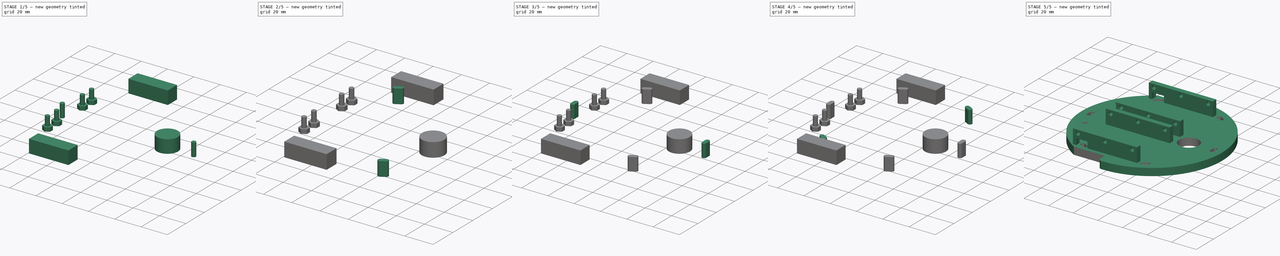
[diagram: build sequence overview — one tinted view per stage of 5, left to right]
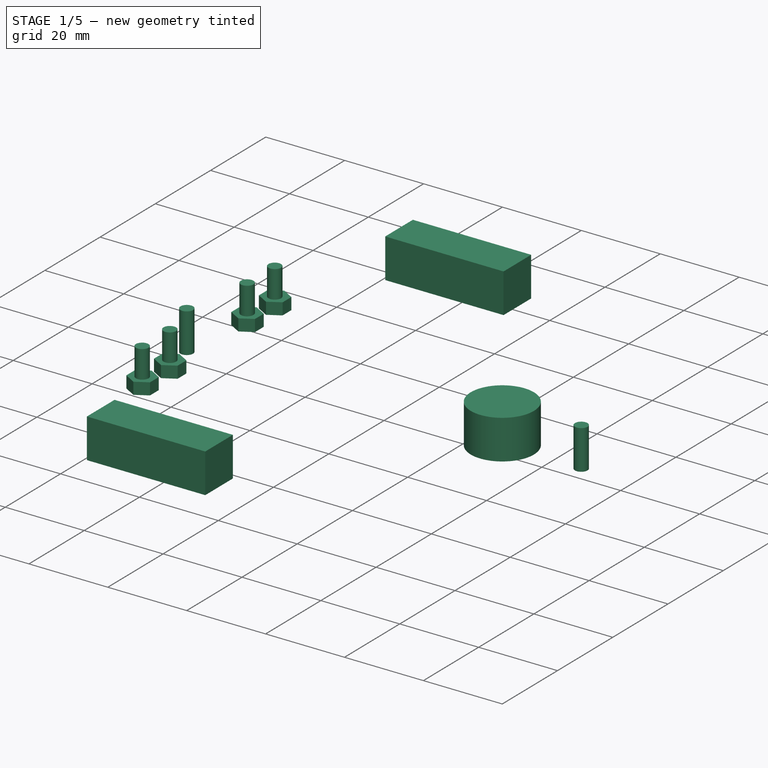
[diagram: stage 1 of 5 — iso view after this stage's code; geometry added in this stage tinted green]
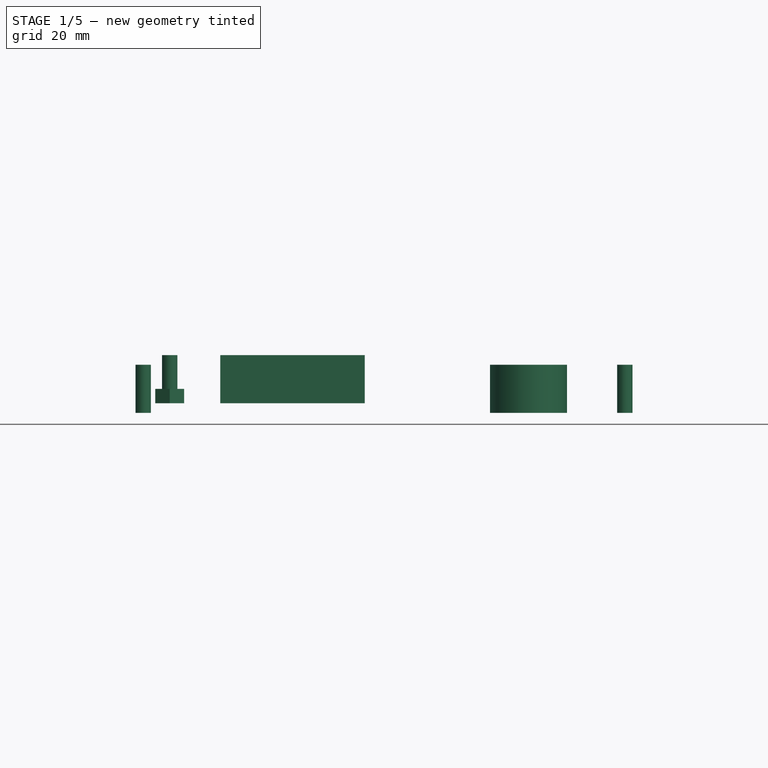
[diagram: stage 1 of 5 — front view after this stage's code; geometry added in this stage tinted green]
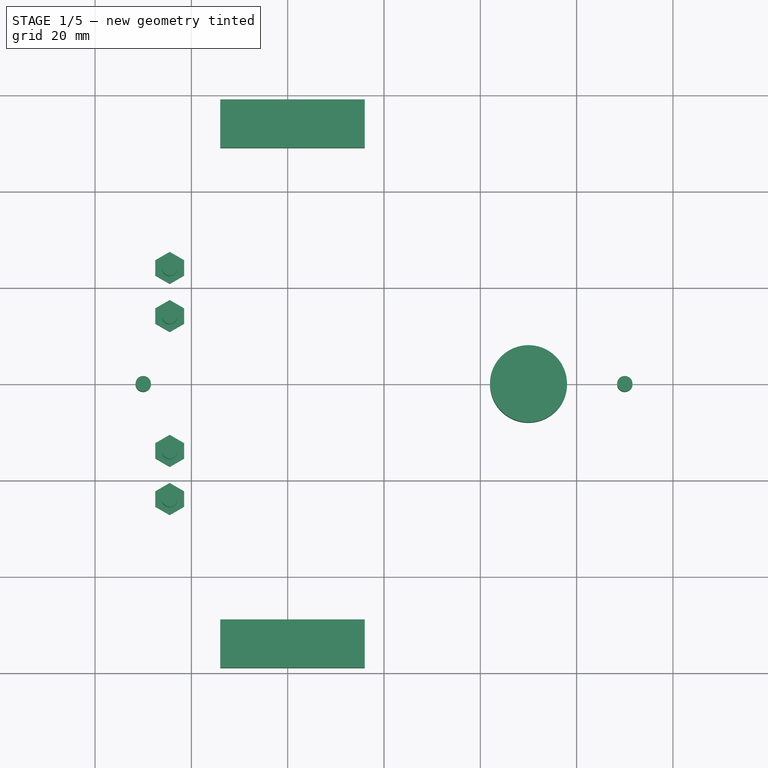
[diagram: stage 1 of 5 — top view after this stage's code; geometry added in this stage tinted green]
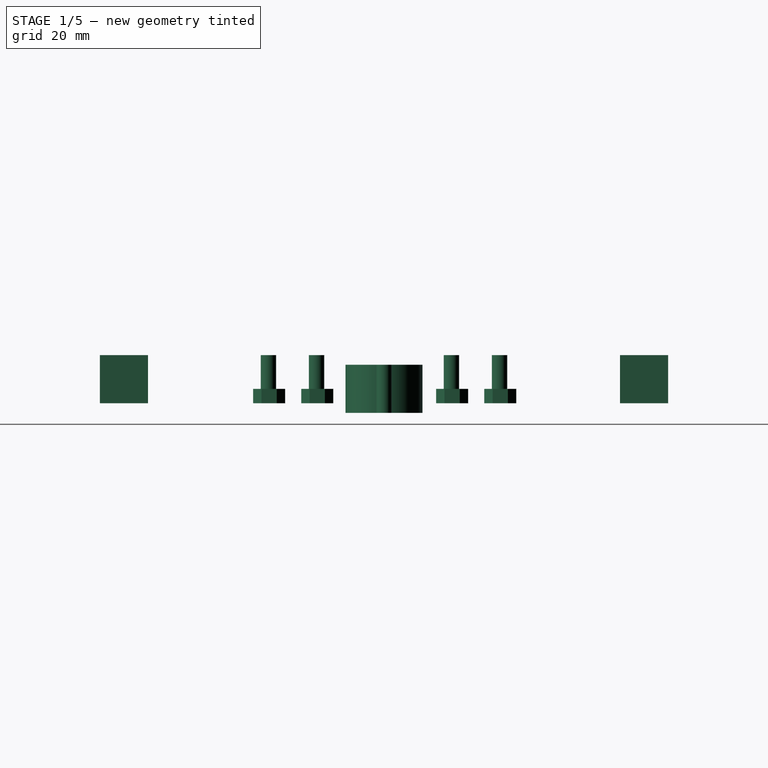
[diagram: stage 1 of 5 — right view after this stage's code; geometry added in this stage tinted green]
FCSTD DOCUMENT  (FreeCAD 0.15R4671 (Git))
Label: bottom_plate
License: All rights reserved
LicenseURL: http://en.wikipedia.org/wiki/All_rights_reserved
objects: Part::Cylinder×56, Part::MultiFuse×39, Part::Mirroring×7, Part::Cut×5, Sketcher::SketchObject×4, Part::Extrusion×4, Part::Box×3, Part::Fillet×1
note: 119 computed .brp shape members not serialized (recipe doc carries the construction recipe); baked Part::Feature solids carry a one-line shape summary decoded from their .brp

FEATURE [Part::Cylinder] Cylinder047
  Angle = 360
  Height = 10
  Placement = pos=(50,0,-2) rot=(0,0,1;0rad)
  Radius = 1.6
FEATURE [Part::Cylinder] Cylinder048
  Angle = 360
  Height = 10
  Placement = pos=(-50,0,-2) rot=(0,0,1;0rad)
  Radius = 1.6
FEATURE [Part::Cylinder] Cylinder053
  Angle = 360
  Height = 10
  Placement = pos=(-44.5,14,0) rot=(0,0,1;0rad)
  Radius = 1.6
FEATURE [Part::Cylinder] Cylinder054
  Angle = 360
  Height = 10
  Placement = pos=(-44.5,24,0) rot=(0,0,1;0rad)
  Radius = 1.6
FEATURE [Part::MultiFuse] Fusion031
  Shapes = -> [Cylinder053,Cylinder054]
FEATURE [Part::Mirroring] Part__Mirroring001  label="Fusion031 (Mirror #2)"
  Base = (0,0,0)
  Normal = (0,1,0)
  Source = -> Fusion031
FEATURE [Part::MultiFuse] Fusion032
  Shapes = -> [Fusion031,Part__Mirroring001]
FEATURE [Sketcher::SketchObject] Sketch002  label="M004"
  sketch-geometry (4):
    g0: LineSegment StartX=0 StartY=3.4641 StartZ=0 EndX=3 EndY=1.73205 EndZ=0
    g1: LineSegment StartX=3 StartY=1.73205 StartZ=0 EndX=3 EndY=-1.44338 EndZ=0
    g2: LineSegment StartX=3 StartY=-1.44338 StartZ=0 EndX=0 EndY=-3.17543 EndZ=0
    g3: LineSegment StartX=0 StartY=3.4641 StartZ=0 EndX=0 EndY=-3.17543 EndZ=0
  constraints (12):
    c: DistanceX(g0) = 3
    c: Coincident(g1,g0)
    c: Vertical(g1)
    c: Coincident(g2,g1)
    c: DistanceX(g0) = 0
    c: DistanceX(g2) = 0
    c: Angle(g0,g1) = 2.0944
    c: Coincident(g3,g0)
    c: Coincident(g3,g2)
    c: DistanceY(g0) = 3.4641
    c: DistanceY(g2) = -3.17543
    c: Angle(g1,g2) = 2.0944
FEATURE [Part::Extrusion] Extrude001
  Base = -> Sketch002
  Dir = (0,0,3)
  Solid = true
FEATURE [Part::Mirroring] Part__Mirroring003  label="Extrude (Mirror #1)001"
  Base = (0,0,0)
  Normal = (1,0,0)
  Source = -> Extrude001
FEATURE [Part::MultiFuse] Fusion034
  Placement = pos=(-44.5,14,0) rot=(0,0,1;0rad)
  Shapes = -> [Part__Mirroring003,Extrude001]
FEATURE [Sketcher::SketchObject] Sketch003  label="M005"
  sketch-geometry (4):
    g0: LineSegment StartX=0 StartY=3.4641 StartZ=0 EndX=3 EndY=1.73205 EndZ=0
    g1: LineSegment StartX=3 StartY=1.73205 StartZ=0 EndX=3 EndY=-1.44338 EndZ=0
    g2: LineSegment StartX=3 StartY=-1.44338 StartZ=0 EndX=0 EndY=-3.17543 EndZ=0
    g3: LineSegment StartX=0 StartY=3.4641 StartZ=0 EndX=0 EndY=-3.17543 EndZ=0
  constraints (12):
    c: DistanceX(g0) = 3
    c: Coincident(g1,g0)
    c: Vertical(g1)
    c: Coincident(g2,g1)
    c: DistanceX(g0) = 0
    c: DistanceX(g2) = 0
    c: Angle(g0,g1) = 2.0944
    c: Coincident(g3,g0)
    c: Coincident(g3,g2)
    c: DistanceY(g0) = 3.4641
    c: DistanceY(g2) = -3.17543
    c: Angle(g1,g2) = 2.0944
FEATURE [Part::Extrusion] Extrude
  Base = -> Sketch003
  Dir = (0,0,3)
  Solid = true
FEATURE [Part::Mirroring] Part__Mirroring004  label="Extrude (Mirror #1)002"
  Base = (0,0,0)
  Normal = (1,0,0)
  Source = -> Extrude
FEATURE [Part::MultiFuse] Fusion035
  Placement = pos=(-44.5,24,0) rot=(0,0,1;0rad)
  Shapes = -> [Part__Mirroring004,Extrude]
FEATURE [Sketcher::SketchObject] Sketch004  label="M006"
  sketch-geometry (4):
    g0: LineSegment StartX=0 StartY=3.4641 StartZ=0 EndX=3 EndY=1.73205 EndZ=0
    g1: LineSegment StartX=3 StartY=1.73205 StartZ=0 EndX=3 EndY=-1.44338 EndZ=0
    g2: LineSegment StartX=3 StartY=-1.44338 StartZ=0 EndX=0 EndY=-3.17543 EndZ=0
    g3: LineSegment StartX=0 StartY=3.4641 StartZ=0 EndX=0 EndY=-3.17543 EndZ=0
  constraints (12):
    c: DistanceX(g0) = 3
    c: Coincident(g1,g0)
    c: Vertical(g1)
    c: Coincident(g2,g1)
    c: DistanceX(g0) = 0
    c: DistanceX(g2) = 0
    c: Angle(g0,g1) = 2.0944
    c: Coincident(g3,g0)
    c: Coincident(g3,g2)
    c: DistanceY(g0) = 3.4641
    c: DistanceY(g2) = -3.17543
    c: Angle(g1,g2) = 2.0944
FEATURE [Part::Extrusion] Extrude002
  Base = -> Sketch004
  Dir = (0,0,3)
  Solid = true
FEATURE [Part::Mirroring] Part__Mirroring005  label="Extrude (Mirror #1)003"
  Base = (0,0,0)
  Normal = (1,0,0)
  Source = -> Extrude002
FEATURE [Part::MultiFuse] Fusion036
  Placement = pos=(-44.5,-14,0) rot=(0,0,1;0rad)
  Shapes = -> [Part__Mirroring005,Extrude002]
FEATURE [Sketcher::SketchObject] Sketch005  label="M007"
  sketch-geometry (4):
    g0: LineSegment StartX=0 StartY=3.4641 StartZ=0 EndX=3 EndY=1.73205 EndZ=0
    g1: LineSegment StartX=3 StartY=1.73205 StartZ=0 EndX=3 EndY=-1.44338 EndZ=0
    g2: LineSegment StartX=3 StartY=-1.44338 StartZ=0 EndX=0 EndY=-3.17543 EndZ=0
    g3: LineSegment StartX=0 StartY=3.4641 StartZ=0 EndX=0 EndY=-3.17543 EndZ=0
  constraints (12):
    c: DistanceX(g0) = 3
    c: Coincident(g1,g0)
    c: Vertical(g1)
    c: Coincident(g2,g1)
    c: DistanceX(g0) = 0
    c: DistanceX(g2) = 0
    c: Angle(g0,g1) = 2.0944
    c: Coincident(g3,g0)
    c: Coincident(g3,g2)
    c: DistanceY(g0) = 3.4641
    c: DistanceY(g2) = -3.17543
    c: Angle(g1,g2) = 2.0944
FEATURE [Part::Extrusion] Extrude003
  Base = -> Sketch005
  Dir = (0,0,3)
  Solid = true
FEATURE [Part::Mirroring] Part__Mirroring006  label="Extrude (Mirror #1)004"
  Base = (0,0,0)
  Normal = (1,0,0)
  Source = -> Extrude003
FEATURE [Part::MultiFuse] Fusion037
  Placement = pos=(-44.5,-24,0) rot=(0,0,1;0rad)
  Shapes = -> [Part__Mirroring006,Extrude003]
FEATURE [Part::Box] Box002  label="Cube002"
  Height = 10
  Length = 30
  Placement = pos=(-34,49,0) rot=(0,0,1;0rad)
  Width = 10
FEATURE [Part::Mirroring] Part__Mirroring007  label="Cube002 (Mirror #7)"
  Base = (0,0,0)
  Normal = (0,1,0)
  Source = -> Box002
FEATURE [Part::MultiFuse] Fusion039
  Shapes = -> [Part__Mirroring007,Box002]
FEATURE [Part::Cylinder] Cylinder055
  Angle = 360
  Height = 10
  Placement = pos=(30,0,-2) rot=(0,0,1;0rad)
  Radius = 8
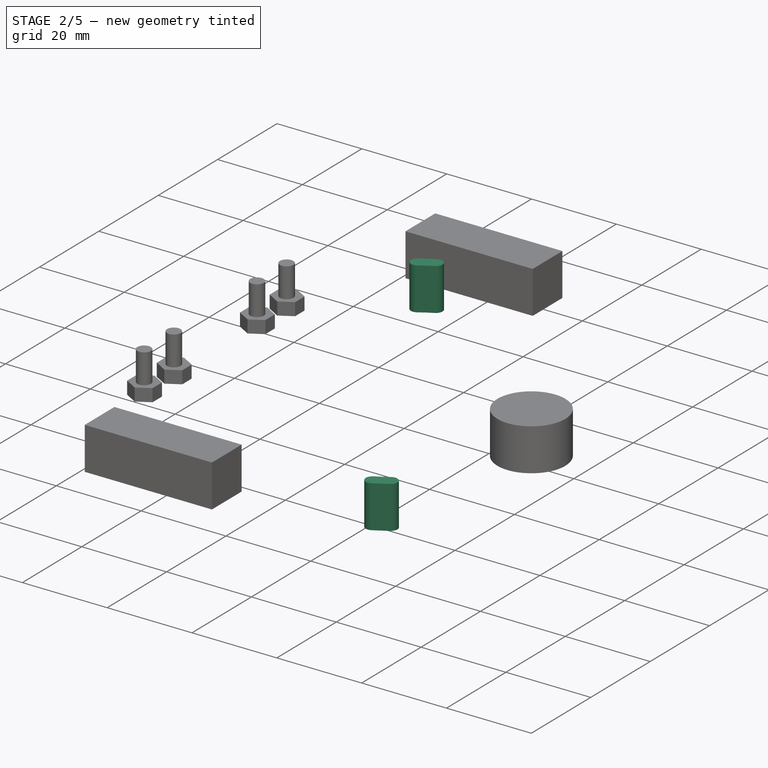
[diagram: stage 2 of 5 — iso view after this stage's code; geometry added in this stage tinted green]
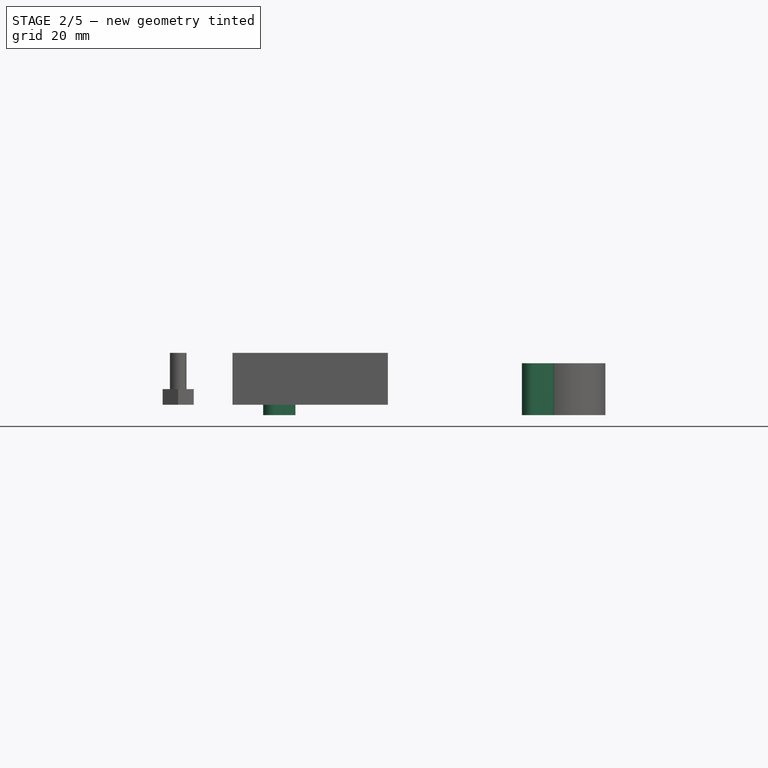
[diagram: stage 2 of 5 — front view after this stage's code; geometry added in this stage tinted green]
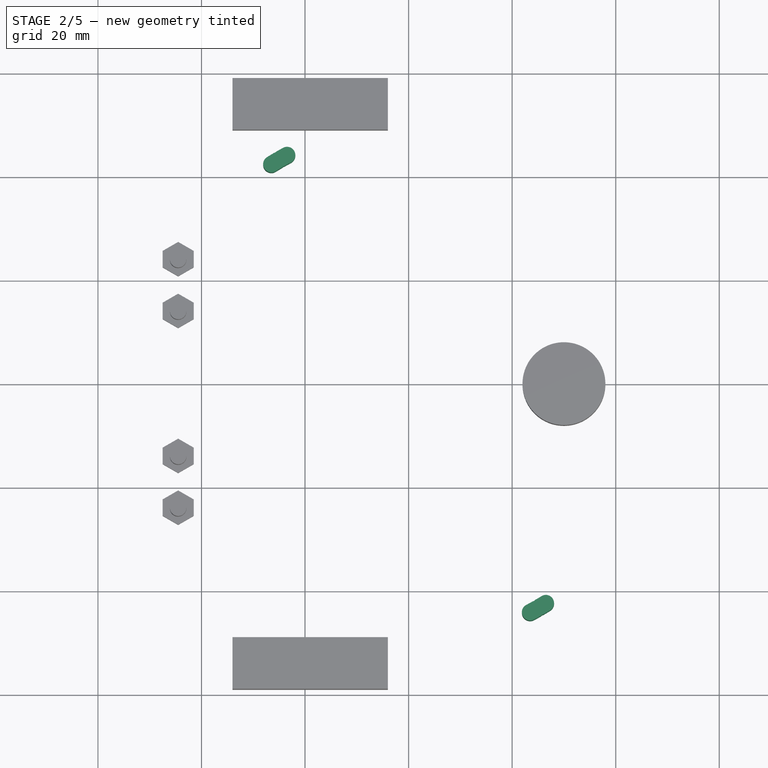
[diagram: stage 2 of 5 — top view after this stage's code; geometry added in this stage tinted green]
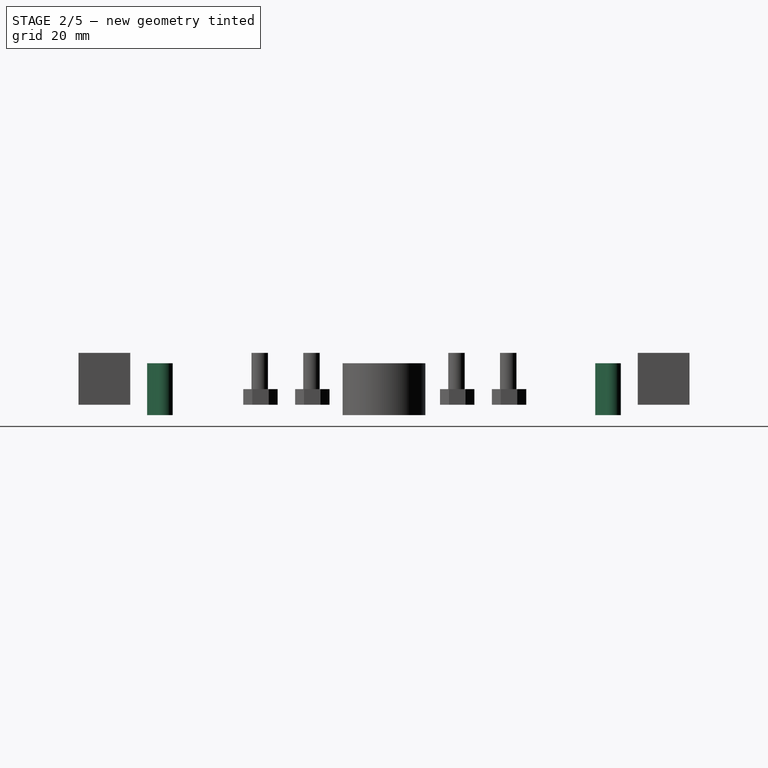
[diagram: stage 2 of 5 — right view after this stage's code; geometry added in this stage tinted green]
FEATURE [Part::Cylinder] Cylinder033
  Angle = 360
  Height = 10
  Placement = pos=(50,0,-2) rot=(0,0,1;0rad)
  Radius = 1.6
FEATURE [Part::Cylinder] Cylinder034
  Angle = 360
  Height = 10
  Placement = pos=(-50,0,-2) rot=(0,0,1;0rad)
  Radius = 1.6
FEATURE [Part::MultiFuse] Fusion018
  Placement = pos=(0,0,0) rot=(0,0,1;0.017453rad)
  Shapes = -> [Cylinder033,Cylinder034]
FEATURE [Part::Cylinder] Cylinder035
  Angle = 360
  Height = 10
  Placement = pos=(50,0,-2) rot=(0,0,1;0rad)
  Radius = 1.6
FEATURE [Part::Cylinder] Cylinder036
  Angle = 360
  Height = 10
  Placement = pos=(-50,0,-2) rot=(0,0,1;0rad)
  Radius = 1.6
FEATURE [Part::MultiFuse] Fusion019
  Placement = pos=(0,0,0) rot=(0,0,1;0.034907rad)
  Shapes = -> [Cylinder035,Cylinder036]
FEATURE [Part::Cylinder] Cylinder037
  Angle = 360
  Height = 10
  Placement = pos=(50,0,-2) rot=(0,0,1;0rad)
  Radius = 1.6
FEATURE [Part::Cylinder] Cylinder038
  Angle = 360
  Height = 10
  Placement = pos=(-50,0,-2) rot=(0,0,1;0rad)
  Radius = 1.6
FEATURE [Part::MultiFuse] Fusion020
  Placement = pos=(0,0,0) rot=(0,0,-1;0.017453rad)
  Shapes = -> [Cylinder037,Cylinder038]
FEATURE [Part::Cylinder] Cylinder039
  Angle = 360
  Height = 10
  Placement = pos=(50,0,-2) rot=(0,0,1;0rad)
  Radius = 1.6
FEATURE [Part::Cylinder] Cylinder040
  Angle = 360
  Height = 10
  Placement = pos=(-50,0,-2) rot=(0,0,1;0rad)
  Radius = 1.6
FEATURE [Part::MultiFuse] Fusion021
  Placement = pos=(0,0,0) rot=(0,0,-1;0.034907rad)
  Shapes = -> [Cylinder039,Cylinder040]
FEATURE [Part::Cylinder] Cylinder041
  Angle = 360
  Height = 10
  Placement = pos=(50,0,-2) rot=(0,0,1;0rad)
  Radius = 1.6
FEATURE [Part::Cylinder] Cylinder042
  Angle = 360
  Height = 10
  Placement = pos=(-50,0,-2) rot=(0,0,1;0rad)
  Radius = 1.6
FEATURE [Part::MultiFuse] Fusion022
  Placement = pos=(0,0,0) rot=(0,0,-1;0.008727rad)
  Shapes = -> [Cylinder041,Cylinder042]
FEATURE [Part::Cylinder] Cylinder043
  Angle = 360
  Height = 10
  Placement = pos=(50,0,-2) rot=(0,0,1;0rad)
  Radius = 1.6
FEATURE [Part::Cylinder] Cylinder044
  Angle = 360
  Height = 10
  Placement = pos=(-50,0,-2) rot=(0,0,1;0rad)
  Radius = 1.6
FEATURE [Part::MultiFuse] Fusion023
  Placement = pos=(0,0,0) rot=(0,0,-1;0.02618rad)
  Shapes = -> [Cylinder043,Cylinder044]
FEATURE [Part::Cylinder] Cylinder045
  Angle = 360
  Height = 10
  Placement = pos=(50,0,-2) rot=(0,0,1;0rad)
  Radius = 1.6
FEATURE [Part::Cylinder] Cylinder046
  Angle = 360
  Height = 10
  Placement = pos=(-50,0,-2) rot=(0,0,1;0rad)
  Radius = 1.6
FEATURE [Part::MultiFuse] Fusion024
  Placement = pos=(0,0,0) rot=(0,0,1;0.02618rad)
  Shapes = -> [Cylinder045,Cylinder046]
FEATURE [Part::MultiFuse] Fusion025
  Placement = pos=(0,0,0) rot=(0,0,1;0.008727rad)
  Shapes = -> [Cylinder047,Cylinder048]
FEATURE [Part::MultiFuse] Fusion026
  Placement = pos=(0,0,0) rot=(0,0,1;2.0944rad)
  Shapes = -> [Fusion021,Fusion024,Fusion019,Fusion023,Fusion020,Fusion022,Fusion018,Fusion025]
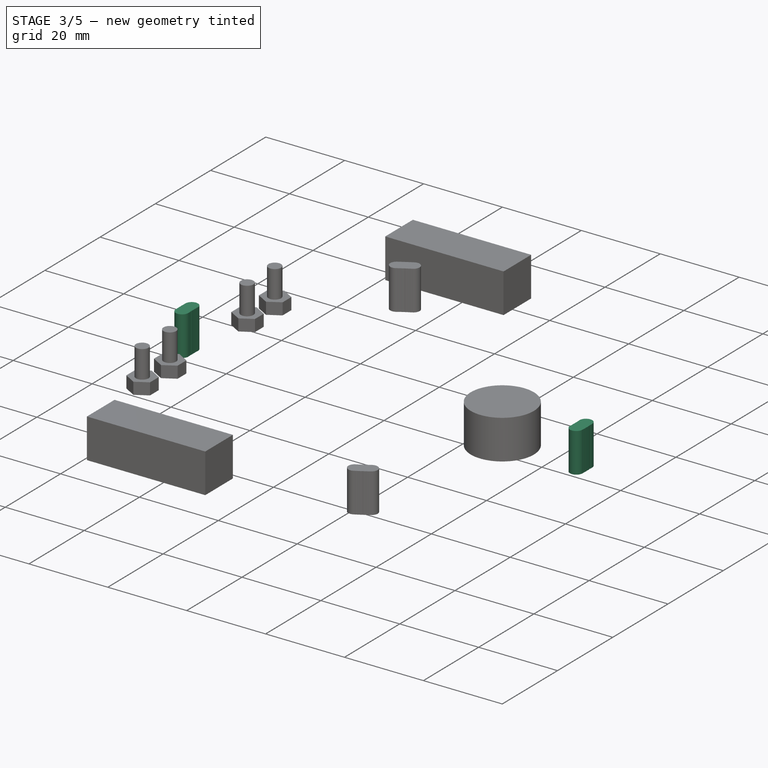
[diagram: stage 3 of 5 — iso view after this stage's code; geometry added in this stage tinted green]
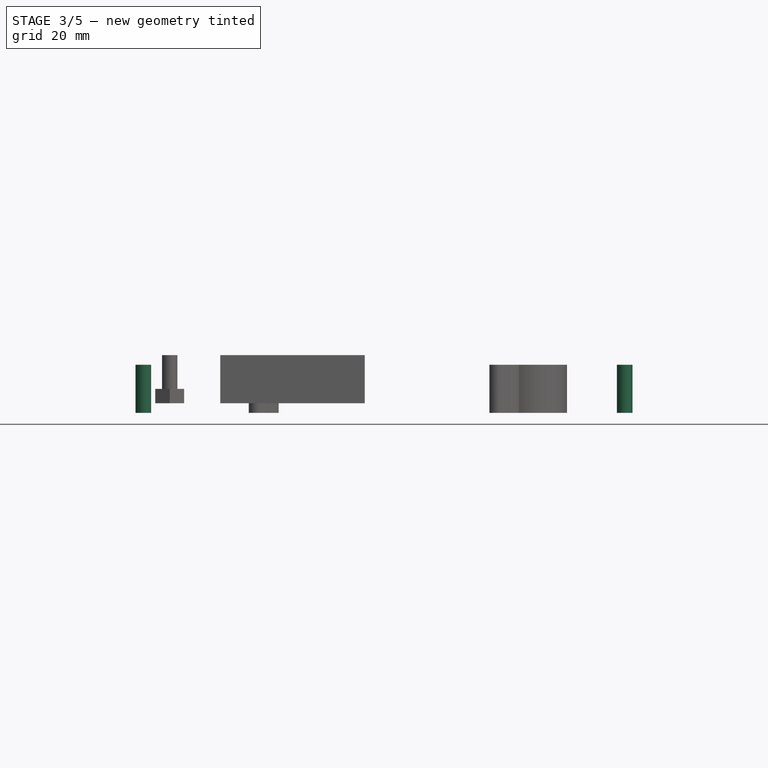
[diagram: stage 3 of 5 — front view after this stage's code; geometry added in this stage tinted green]
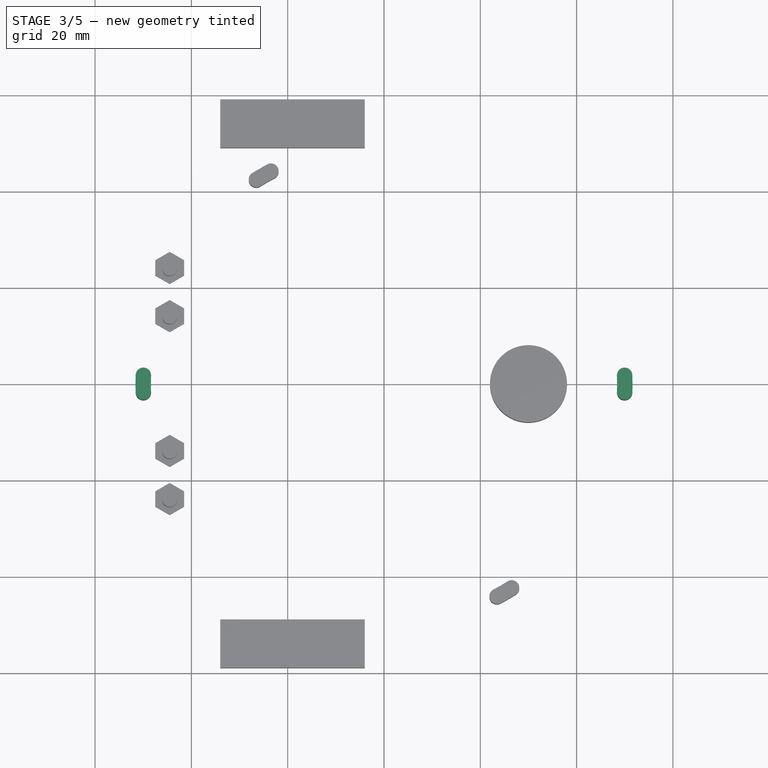
[diagram: stage 3 of 5 — top view after this stage's code; geometry added in this stage tinted green]
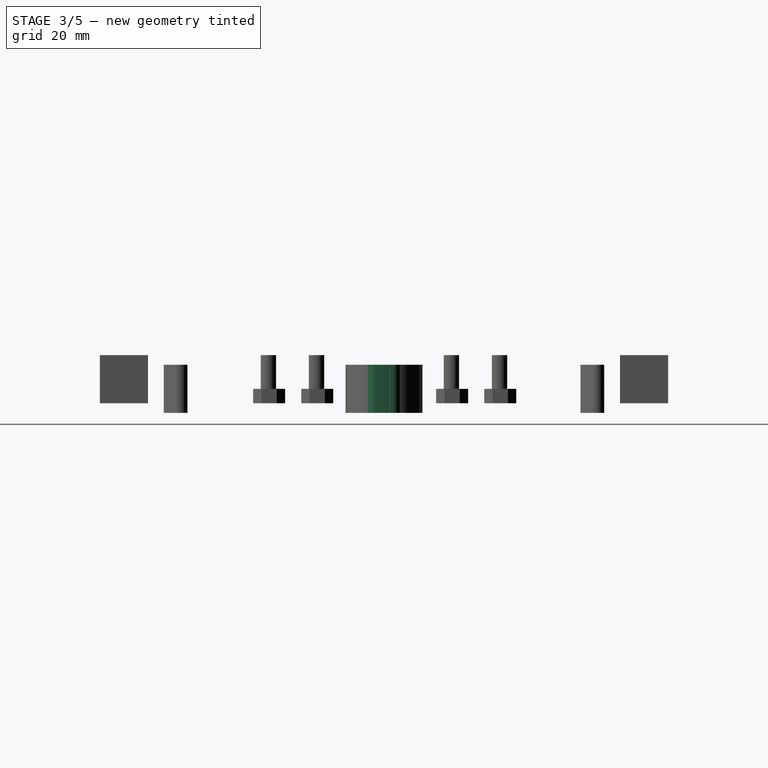
[diagram: stage 3 of 5 — right view after this stage's code; geometry added in this stage tinted green]
FEATURE [Part::Cylinder] Cylinder017
  Angle = 360
  Height = 10
  Placement = pos=(50,0,-2) rot=(0,0,1;0rad)
  Radius = 1.6
FEATURE [Part::Cylinder] Cylinder018
  Angle = 360
  Height = 10
  Placement = pos=(-50,0,-2) rot=(0,0,1;0rad)
  Radius = 1.6
FEATURE [Part::Cylinder] Cylinder019
  Angle = 360
  Height = 10
  Placement = pos=(50,0,-2) rot=(0,0,1;0rad)
  Radius = 1.6
FEATURE [Part::Cylinder] Cylinder020
  Angle = 360
  Height = 10
  Placement = pos=(-50,0,-2) rot=(0,0,1;0rad)
  Radius = 1.6
FEATURE [Part::MultiFuse] Fusion010
  Placement = pos=(0,0,0) rot=(0,0,1;0.034907rad)
  Shapes = -> [Cylinder019,Cylinder020]
FEATURE [Part::Cylinder] Cylinder021
  Angle = 360
  Height = 10
  Placement = pos=(50,0,-2) rot=(0,0,1;0rad)
  Radius = 1.6
FEATURE [Part::Cylinder] Cylinder022
  Angle = 360
  Height = 10
  Placement = pos=(-50,0,-2) rot=(0,0,1;0rad)
  Radius = 1.6
FEATURE [Part::MultiFuse] Fusion011
  Placement = pos=(0,0,0) rot=(0,0,-1;0.017453rad)
  Shapes = -> [Cylinder021,Cylinder022]
FEATURE [Part::Cylinder] Cylinder023
  Angle = 360
  Height = 10
  Placement = pos=(50,0,-2) rot=(0,0,1;0rad)
  Radius = 1.6
FEATURE [Part::Cylinder] Cylinder024
  Angle = 360
  Height = 10
  Placement = pos=(-50,0,-2) rot=(0,0,1;0rad)
  Radius = 1.6
FEATURE [Part::MultiFuse] Fusion012
  Placement = pos=(0,0,0) rot=(0,0,-1;0.034907rad)
  Shapes = -> [Cylinder023,Cylinder024]
FEATURE [Part::Cylinder] Cylinder025
  Angle = 360
  Height = 10
  Placement = pos=(50,0,-2) rot=(0,0,1;0rad)
  Radius = 1.6
FEATURE [Part::Cylinder] Cylinder026
  Angle = 360
  Height = 10
  Placement = pos=(-50,0,-2) rot=(0,0,1;0rad)
  Radius = 1.6
FEATURE [Part::MultiFuse] Fusion013
  Placement = pos=(0,0,0) rot=(0,0,-1;0.008727rad)
  Shapes = -> [Cylinder025,Cylinder026]
FEATURE [Part::Cylinder] Cylinder027
  Angle = 360
  Height = 10
  Placement = pos=(50,0,-2) rot=(0,0,1;0rad)
  Radius = 1.6
FEATURE [Part::Cylinder] Cylinder028
  Angle = 360
  Height = 10
  Placement = pos=(-50,0,-2) rot=(0,0,1;0rad)
  Radius = 1.6
FEATURE [Part::MultiFuse] Fusion014
  Placement = pos=(0,0,0) rot=(0,0,-1;0.02618rad)
  Shapes = -> [Cylinder027,Cylinder028]
FEATURE [Part::Cylinder] Cylinder029
  Angle = 360
  Height = 10
  Placement = pos=(50,0,-2) rot=(0,0,1;0rad)
  Radius = 1.6
FEATURE [Part::Cylinder] Cylinder030
  Angle = 360
  Height = 10
  Placement = pos=(-50,0,-2) rot=(0,0,1;0rad)
  Radius = 1.6
FEATURE [Part::MultiFuse] Fusion015
  Placement = pos=(0,0,0) rot=(0,0,1;0.02618rad)
  Shapes = -> [Cylinder029,Cylinder030]
FEATURE [Part::Cylinder] Cylinder031
  Angle = 360
  Height = 10
  Placement = pos=(50,0,-2) rot=(0,0,1;0rad)
  Radius = 1.6
FEATURE [Part::Cylinder] Cylinder032
  Angle = 360
  Height = 10
  Placement = pos=(-50,0,-2) rot=(0,0,1;0rad)
  Radius = 1.6
FEATURE [Part::MultiFuse] Fusion016
  Placement = pos=(0,0,0) rot=(0,0,1;0.008727rad)
  Shapes = -> [Cylinder031,Cylinder032]
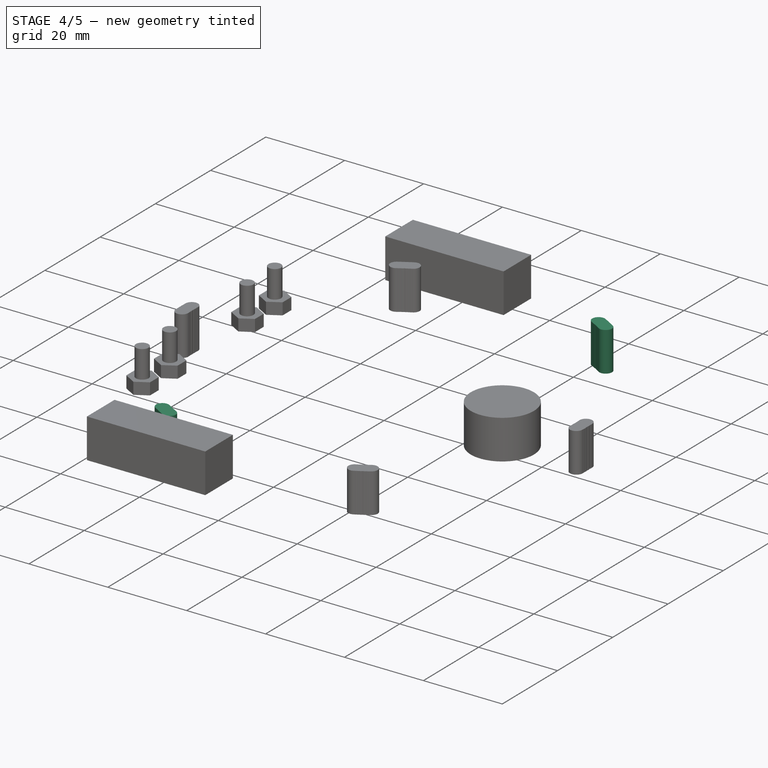
[diagram: stage 4 of 5 — iso view after this stage's code; geometry added in this stage tinted green]
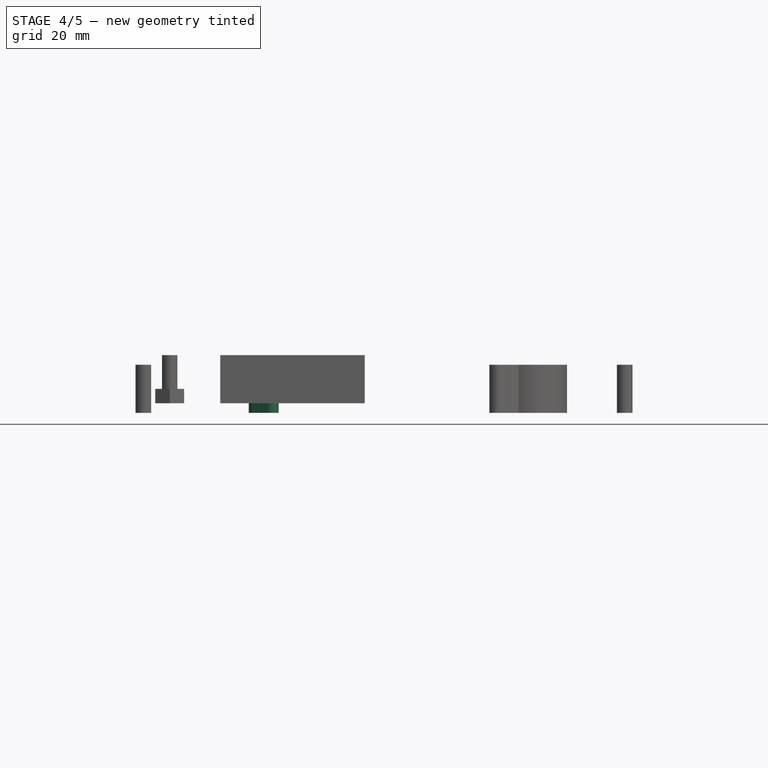
[diagram: stage 4 of 5 — front view after this stage's code; geometry added in this stage tinted green]
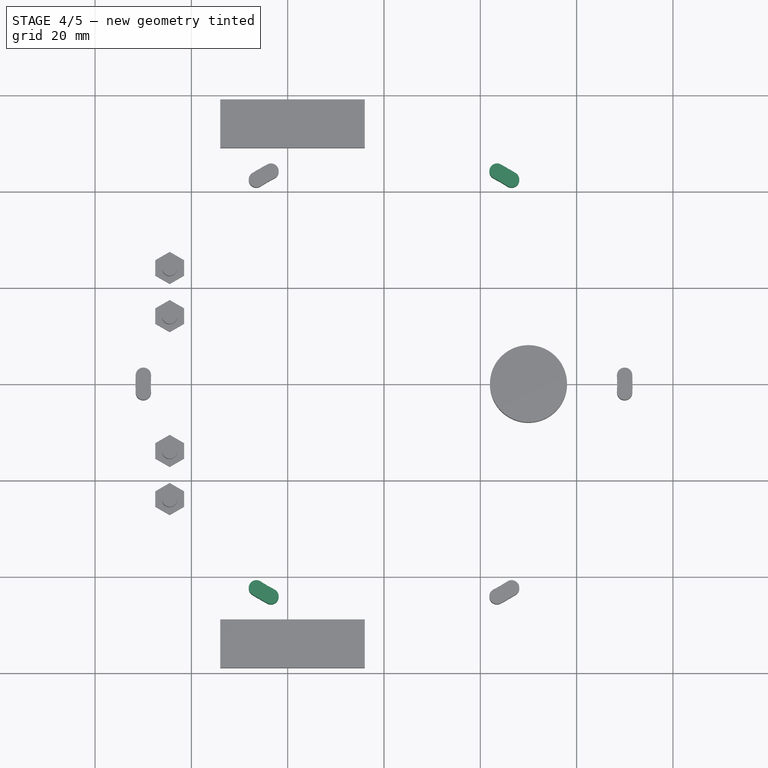
[diagram: stage 4 of 5 — top view after this stage's code; geometry added in this stage tinted green]
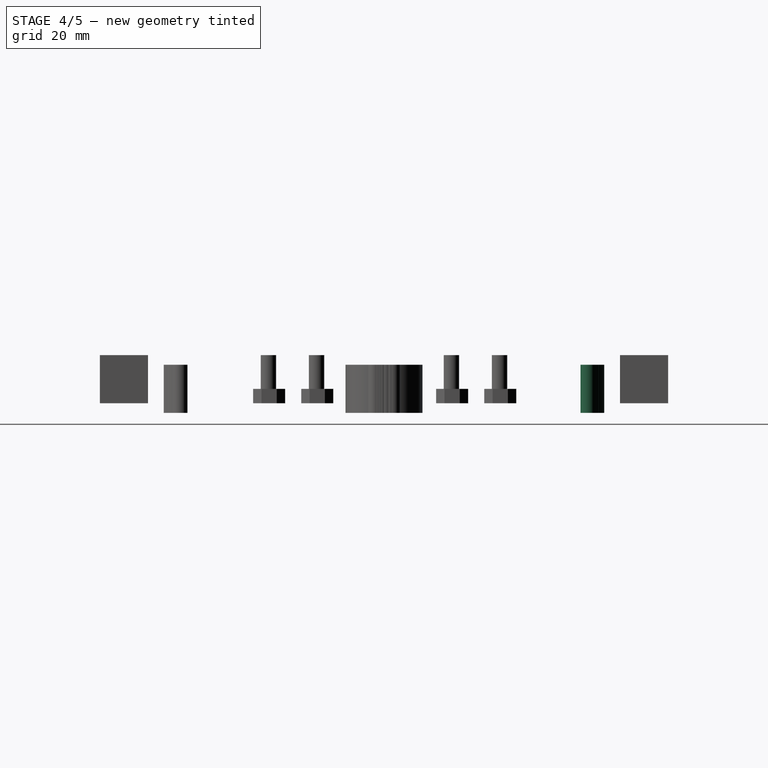
[diagram: stage 4 of 5 — right view after this stage's code; geometry added in this stage tinted green]
FEATURE [Part::Cylinder] Cylinder003
  Angle = 360
  Height = 10
  Placement = pos=(50,0,-2) rot=(0,0,1;0rad)
  Radius = 1.6
FEATURE [Part::Cylinder] Cylinder004
  Angle = 360
  Height = 10
  Placement = pos=(-50,0,-2) rot=(0,0,1;0rad)
  Radius = 1.6
FEATURE [Part::MultiFuse] Fusion001
  Placement = pos=(0,0,0) rot=(0,0,1;0.034907rad)
  Shapes = -> [Cylinder003,Cylinder004]
FEATURE [Part::Cylinder] Cylinder005
  Angle = 360
  Height = 10
  Placement = pos=(50,0,-2) rot=(0,0,1;0rad)
  Radius = 1.6
FEATURE [Part::Cylinder] Cylinder006
  Angle = 360
  Height = 10
  Placement = pos=(-50,0,-2) rot=(0,0,1;0rad)
  Radius = 1.6
FEATURE [Part::MultiFuse] Fusion002
  Placement = pos=(0,0,0) rot=(0,0,-1;0.017453rad)
  Shapes = -> [Cylinder005,Cylinder006]
FEATURE [Part::Cylinder] Cylinder007
  Angle = 360
  Height = 10
  Placement = pos=(50,0,-2) rot=(0,0,1;0rad)
  Radius = 1.6
FEATURE [Part::Cylinder] Cylinder008
  Angle = 360
  Height = 10
  Placement = pos=(-50,0,-2) rot=(0,0,1;0rad)
  Radius = 1.6
FEATURE [Part::MultiFuse] Fusion003
  Placement = pos=(0,0,0) rot=(0,0,-1;0.034907rad)
  Shapes = -> [Cylinder007,Cylinder008]
FEATURE [Part::Cylinder] Cylinder009
  Angle = 360
  Height = 10
  Placement = pos=(50,0,-2) rot=(0,0,1;0rad)
  Radius = 1.6
FEATURE [Part::Cylinder] Cylinder010
  Angle = 360
  Height = 10
  Placement = pos=(-50,0,-2) rot=(0,0,1;0rad)
  Radius = 1.6
FEATURE [Part::MultiFuse] Fusion004
  Placement = pos=(0,0,0) rot=(0,0,-1;0.008727rad)
  Shapes = -> [Cylinder009,Cylinder010]
FEATURE [Part::Cylinder] Cylinder011
  Angle = 360
  Height = 10
  Placement = pos=(50,0,-2) rot=(0,0,1;0rad)
  Radius = 1.6
FEATURE [Part::Cylinder] Cylinder012
  Angle = 360
  Height = 10
  Placement = pos=(-50,0,-2) rot=(0,0,1;0rad)
  Radius = 1.6
FEATURE [Part::MultiFuse] Fusion005
  Placement = pos=(0,0,0) rot=(0,0,-1;0.02618rad)
  Shapes = -> [Cylinder011,Cylinder012]
FEATURE [Part::Cylinder] Cylinder013
  Angle = 360
  Height = 10
  Placement = pos=(50,0,-2) rot=(0,0,1;0rad)
  Radius = 1.6
FEATURE [Part::Cylinder] Cylinder014
  Angle = 360
  Height = 10
  Placement = pos=(-50,0,-2) rot=(0,0,1;0rad)
  Radius = 1.6
FEATURE [Part::MultiFuse] Fusion006
  Placement = pos=(0,0,0) rot=(0,0,1;0.02618rad)
  Shapes = -> [Cylinder013,Cylinder014]
FEATURE [Part::Cylinder] Cylinder015
  Angle = 360
  Height = 10
  Placement = pos=(50,0,-2) rot=(0,0,1;0rad)
  Radius = 1.6
FEATURE [Part::Cylinder] Cylinder016
  Angle = 360
  Height = 10
  Placement = pos=(-50,0,-2) rot=(0,0,1;0rad)
  Radius = 1.6
FEATURE [Part::MultiFuse] Fusion007
  Placement = pos=(0,0,0) rot=(0,0,1;0.008727rad)
  Shapes = -> [Cylinder015,Cylinder016]
FEATURE [Part::MultiFuse] Fusion009
  Placement = pos=(0,0,0) rot=(0,0,1;0.017453rad)
  Shapes = -> [Cylinder017,Cylinder018]
FEATURE [Part::MultiFuse] Fusion017
  Placement = pos=(0,0,0) rot=(0,0,1;1.0472rad)
  Shapes = -> [Fusion012,Fusion015,Fusion010,Fusion014,Fusion011,Fusion013,Fusion009,Fusion016]
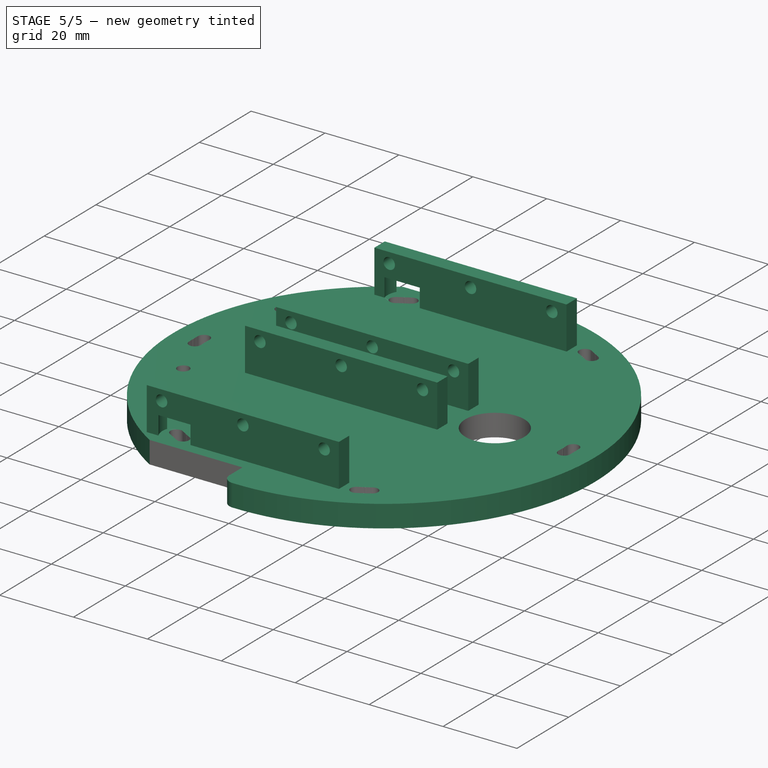
[diagram: stage 5 of 5 — iso view after this stage's code; geometry added in this stage tinted green]
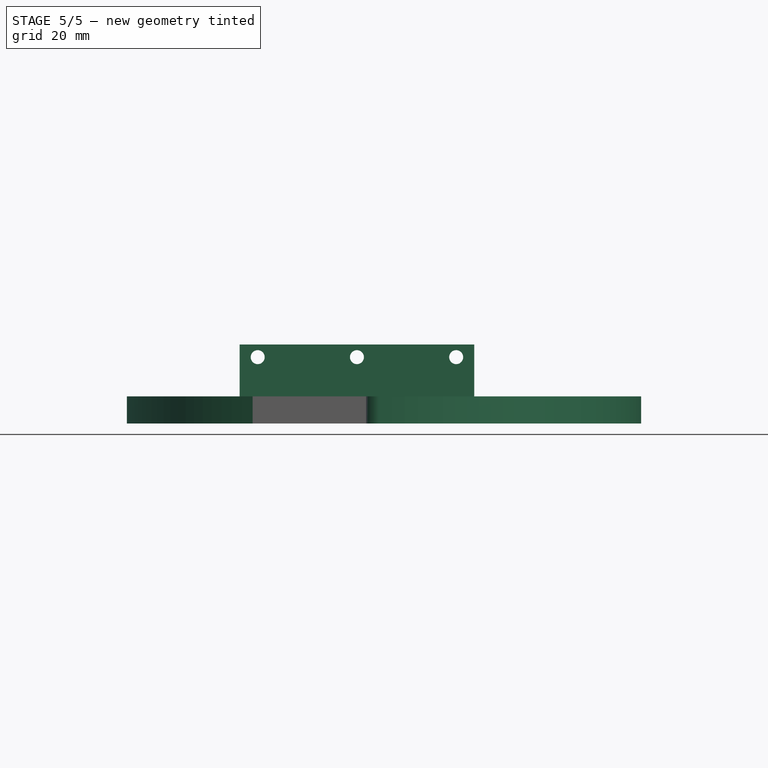
[diagram: stage 5 of 5 — front view after this stage's code; geometry added in this stage tinted green]
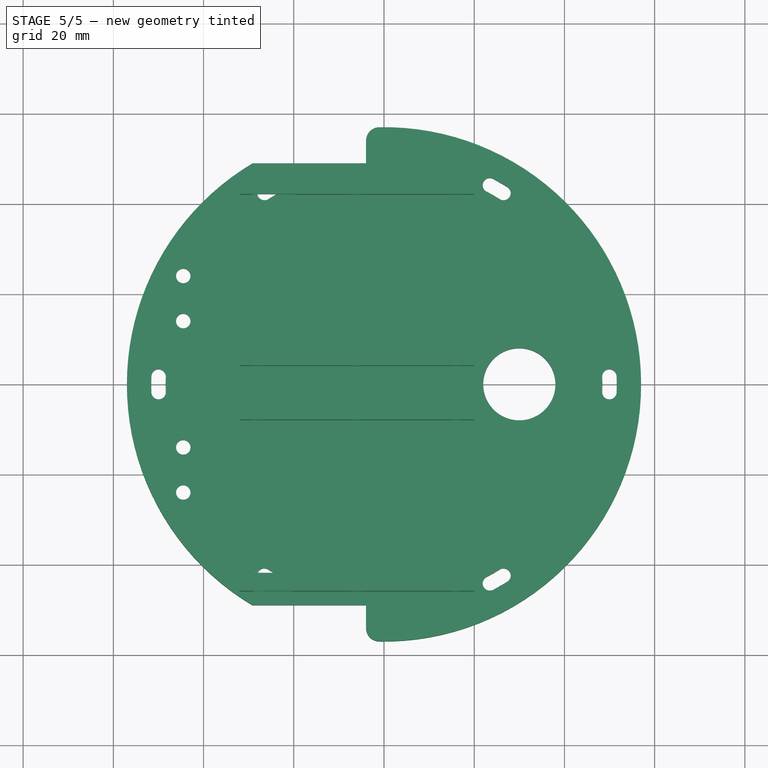
[diagram: stage 5 of 5 — top view after this stage's code; geometry added in this stage tinted green]
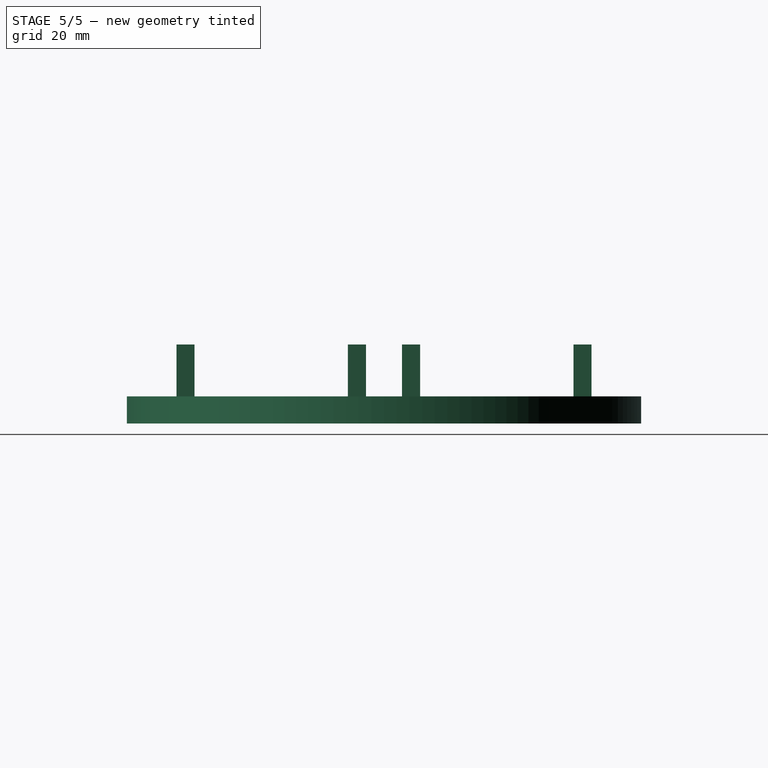
[diagram: stage 5 of 5 — right view after this stage's code; geometry added in this stage tinted green]
FEATURE [Part::Cylinder] Cylinder
  Angle = 360
  Height = 6
  Radius = 57
FEATURE [Part::Cylinder] Cylinder001
  Angle = 360
  Height = 10
  Placement = pos=(50,0,-2) rot=(0,0,1;0rad)
  Radius = 1.6
FEATURE [Part::Cylinder] Cylinder002
  Angle = 360
  Height = 10
  Placement = pos=(-50,0,-2) rot=(0,0,1;0rad)
  Radius = 1.6
FEATURE [Part::MultiFuse] Fusion
  Placement = pos=(0,0,0) rot=(0,0,1;0.017453rad)
  Shapes = -> [Cylinder001,Cylinder002]
FEATURE [Part::MultiFuse] Fusion008
  Shapes = -> [Fusion003,Fusion006,Fusion001,Fusion005,Fusion002,Fusion004,Fusion,Fusion007]
FEATURE [Part::MultiFuse] Fusion027
  Shapes = -> [Fusion026,Fusion017,Fusion008]
FEATURE [Part::Box] Box  label="Cube"
  Height = 11.5
  Length = 52
  Placement = pos=(-30,4,6) rot=(0,0,1;0rad)
  Width = 4
FEATURE [Part::Box] Box001  label="Cube001"
  Height = 11.5
  Length = 52
  Placement = pos=(-30,42,6) rot=(0,0,1;0rad)
  Width = 4
FEATURE [Part::Cylinder] Cylinder049
  Angle = 360
  Height = 50
  Placement = pos=(-8,50,14.7) rot=(1,0,0;1.5708rad)
  Radius = 1.55
FEATURE [Part::Cylinder] Cylinder050
  Angle = 360
  Height = 50
  Placement = pos=(14,50,14.7) rot=(1,0,0;1.5708rad)
  Radius = 1.55
FEATURE [Part::Cylinder] Cylinder051
  Angle = 360
  Height = 50
  Placement = pos=(-30,50,14.7) rot=(1,0,0;1.5708rad)
  Radius = 1.55
FEATURE [Part::MultiFuse] Fusion028
  Placement = pos=(2,0,0) rot=(0,0,1;0rad)
  Shapes = -> [Cylinder051,Cylinder049,Cylinder050]
FEATURE [Part::MultiFuse] Fusion029
  Placement = pos=(-2,0,0) rot=(0,0,1;0rad)
  Shapes = -> [Box001,Box]
FEATURE [Part::Cylinder] Cylinder052
  Angle = 360
  Height = 5
  Placement = pos=(-24.5,43.5,6) rot=(0,0,1;0rad)
  Radius = 5
FEATURE [Part::Cut] Cut
  Base = -> Fusion029
  Tool = -> Fusion028
FEATURE [Part::Cut] Cut001
  Base = -> Cut
  Tool = -> Cylinder052
FEATURE [Part::Mirroring] Part__Mirroring  label="Cut001 (Mirror #1)"
  Base = (0,0,0)
  Normal = (0,1,0)
  Source = -> Cut001
FEATURE [Part::MultiFuse] Fusion030
  Shapes = -> [Cylinder,Cut001,Part__Mirroring]
FEATURE [Part::MultiFuse] Fusion038
  Shapes = -> [Fusion037,Fusion036,Fusion035,Fusion034,Fusion027,Fusion032]
FEATURE [Part::Cut] Cut002
  Base = -> Fusion030
  Tool = -> Fusion038
FEATURE [Part::Cut] Cut003
  Base = -> Cut002
  Tool = -> Fusion039
FEATURE [Part::Fillet] Fillet
  Base = -> Cut003
  Edges = 2 edges r=3: [Edge3,Edge6]
FEATURE [Part::Cut] Cut004
  Base = -> Fillet
  Tool = -> Cylinder055
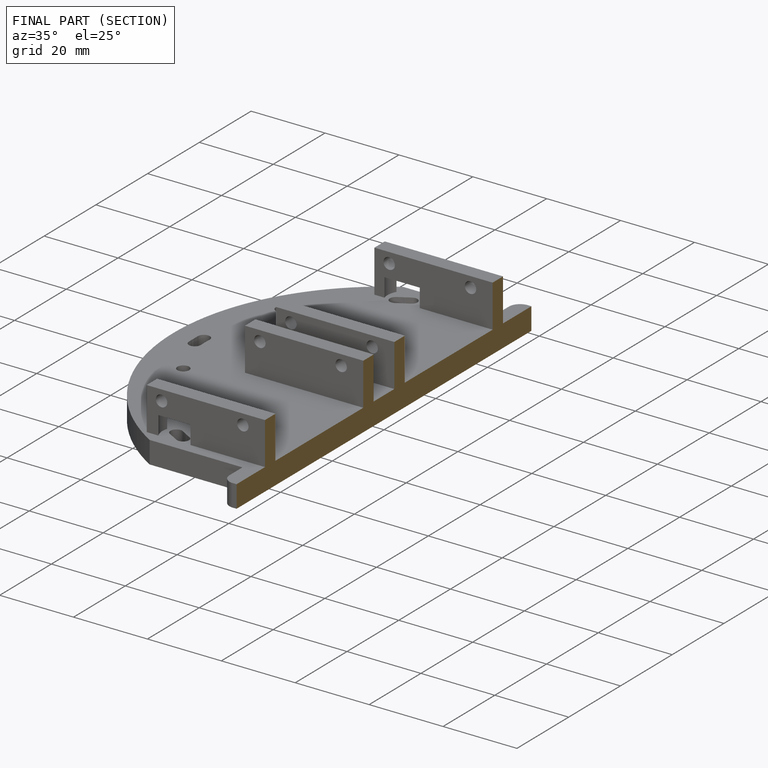
[diagram: finished part — half-section view (interior)]
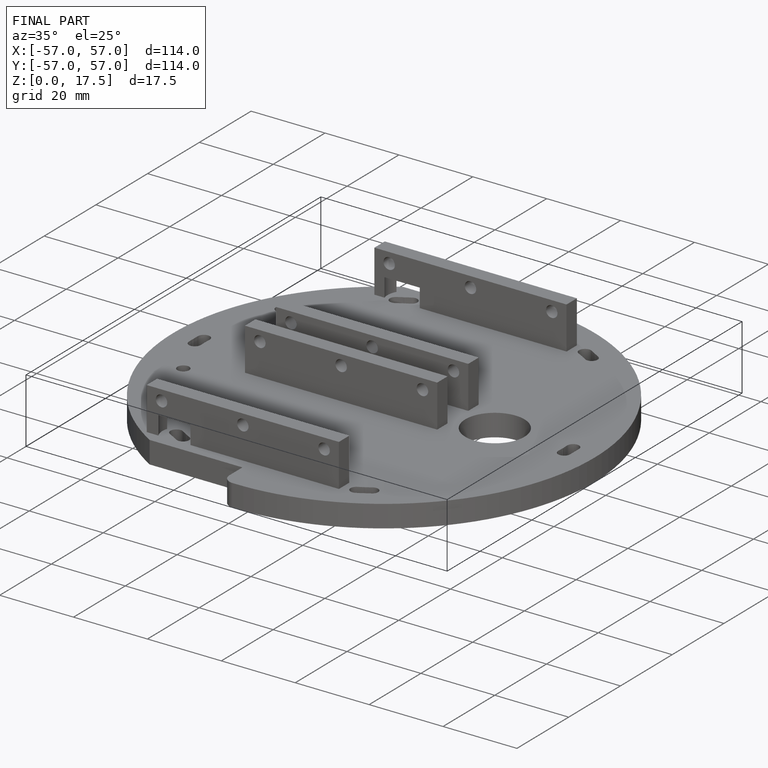
[diagram: finished part — iso view with bounding-box wireframe]
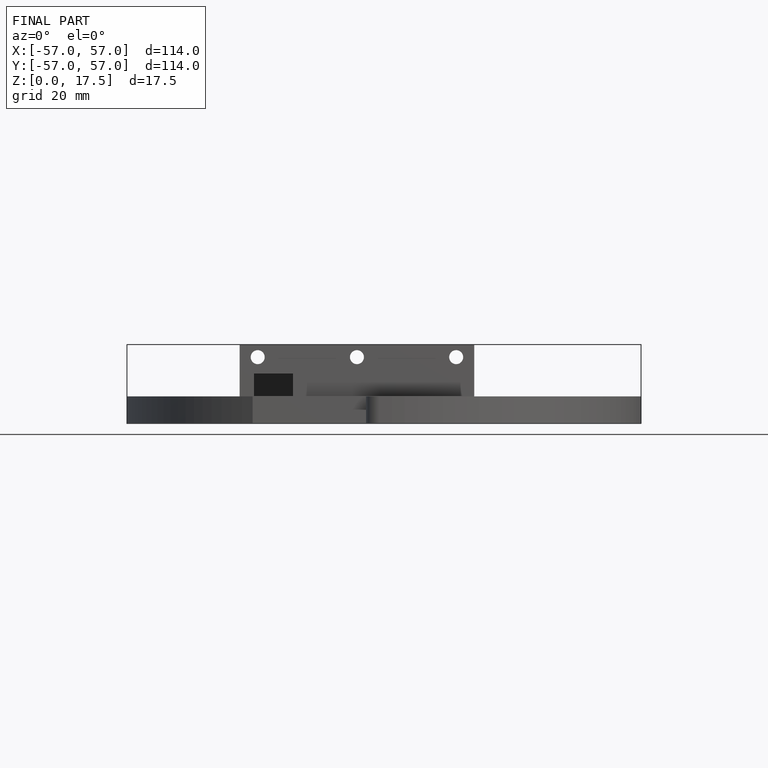
[diagram: finished part — front view with bounding-box wireframe]
